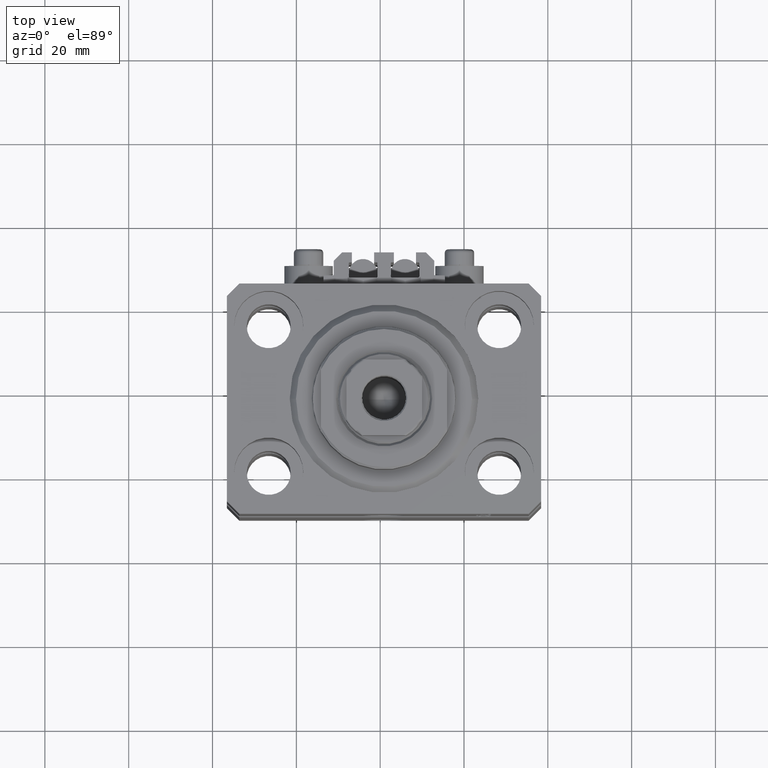
[diagram: clean part render]
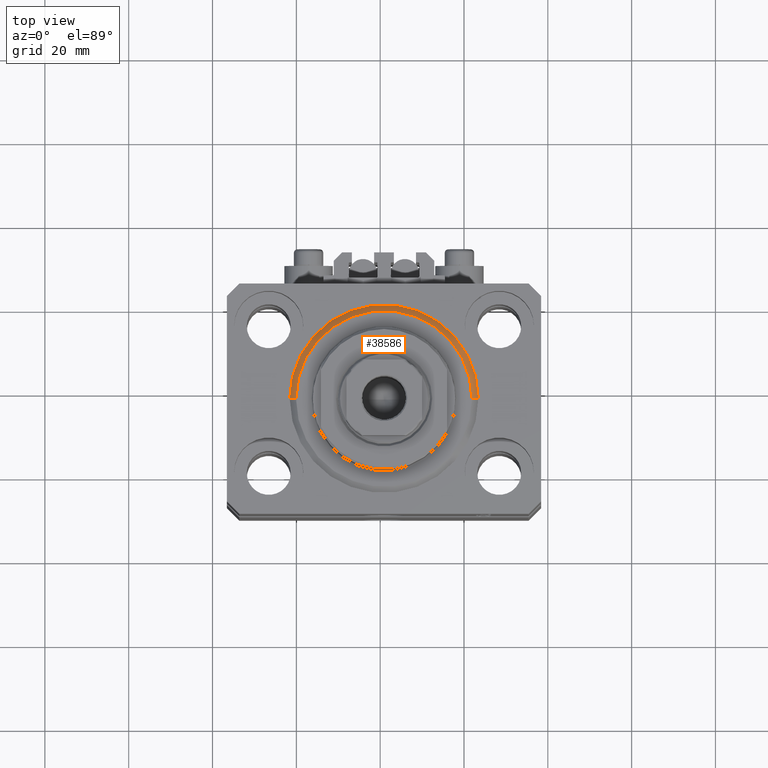
[diagram: same view with one face highlighted and labeled with its STEP entity id]
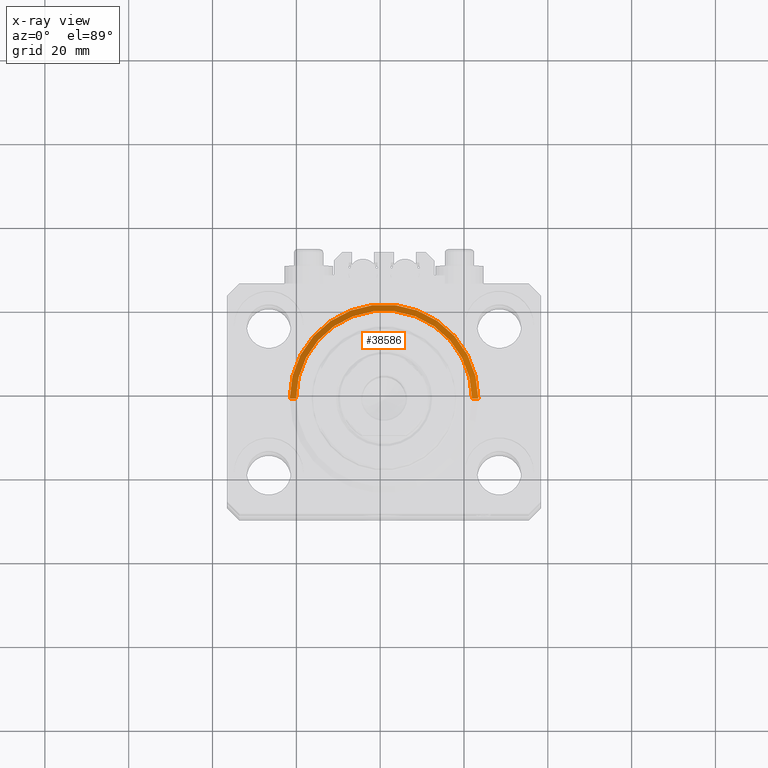
[diagram: x-ray of the same camera — body ghosted, the highlighted face saturated]
A machine part, top view. The second image highlights one B-rep face of the part: STEP entity #38586.
The next image is the same camera in x-ray: the body ghosted, the highlighted face saturated — about 0% of this face is hidden behind the body in this view.
In plain terms, the highlighted conical surface has half-angle 45 deg.
Its self-contained STEP definition (entity closure, byte-faithful):
#1120 = LINE ( 'NONE', #30343, #24587 ) ;
#1324 = LINE ( 'NONE', #20098, #39186 ) ;
#3325 = DIRECTION ( 'NONE',  ( -0.000000000000000000, -0.000000000000000000, 1.000000000000000000 ) ) ;
#3831 = AXIS2_PLACEMENT_3D ( 'NONE', #11537, #19094, #33933 ) ;
#4615 = CIRCLE ( 'NONE', #3831, 20.99999999999998934 ) ;
#7468 = DIRECTION ( 'NONE',  ( 1.000000000000000000, 0.000000000000000000, 0.000000000000000000 ) ) ;
#11454 = CONICAL_SURFACE ( 'NONE', #27026, 22.50000000000000355, 0.7853981633974517207 ) ;
#11537 = CARTESIAN_POINT ( 'NONE',  ( 0.000000000000000000, 0.000000000000000000, 0.000000000000000000 ) ) ;
#11678 = ORIENTED_EDGE ( 'NONE', *, *, #28324, .F. ) ;
#15212 = VERTEX_POINT ( 'NONE', #42673 ) ;
#17347 = CARTESIAN_POINT ( 'NONE',  ( 20.99999999999998934, 0.000000000000000000, 0.000000000000000000 ) ) ;
#18785 = EDGE_CURVE ( 'NONE', #24443, #43987, #4615, .T. ) ;
#19094 = DIRECTION ( 'NONE',  ( -0.000000000000000000, -0.000000000000000000, -1.000000000000000000 ) ) ;
#19171 = CARTESIAN_POINT ( 'NONE',  ( 0.000000000000000000, 0.000000000000000000, 1.500000000000001332 ) ) ;
#19657 = DIRECTION ( 'NONE',  ( -0.7071067811865500152, 8.659560562354963673E-17, 0.7071067811865451302 ) ) ;
#20098 = CARTESIAN_POINT ( 'NONE',  ( 22.50000000000000355, 0.000000000000000000, 1.500000000000001332 ) ) ;
#23567 = CARTESIAN_POINT ( 'NONE',  ( -20.99999999999998934, 2.663606788145492628E-15, 0.000000000000000000 ) ) ;
#23745 = ORIENTED_EDGE ( 'NONE', *, *, #18785, .F. ) ;
#24221 = CARTESIAN_POINT ( 'NONE',  ( -22.50000000000000355, 0.000000000000000000, 1.500000000000001332 ) ) ;
#24443 = VERTEX_POINT ( 'NONE', #23567 ) ;
#24587 = VECTOR ( 'NONE', #19657, 1000.000000000000114 ) ;
#26297 = ORIENTED_EDGE ( 'NONE', *, *, #47305, .T. ) ;
#27026 = AXIS2_PLACEMENT_3D ( 'NONE', #47215, #3325, #43784 ) ;
#28324 = EDGE_CURVE ( 'NONE', #43987, #15212, #1324, .T. ) ;
#29158 = DIRECTION ( 'NONE',  ( -0.000000000000000000, -0.000000000000000000, 1.000000000000000000 ) ) ;
#30343 = CARTESIAN_POINT ( 'NONE',  ( -22.50000000000000355, 2.755455298081545172E-15, 1.500000000000001332 ) ) ;
#33933 = DIRECTION ( 'NONE',  ( 1.000000000000000000, 0.000000000000000000, 0.000000000000000000 ) ) ;
#34994 = EDGE_CURVE ( 'NONE', #15212, #46790, #39316, .T. ) ;
#35757 = FACE_OUTER_BOUND ( 'NONE', #41381, .T. ) ;
#37557 = ORIENTED_EDGE ( 'NONE', *, *, #34994, .F. ) ;
#38586 = ADVANCED_FACE ( 'NONE', ( #35757 ), #11454, .T. ) ;
#39186 = VECTOR ( 'NONE', #42009, 1000.000000000000114 ) ;
#39316 = CIRCLE ( 'NONE', #47885, 22.50000000000000355 ) ;
#41381 = EDGE_LOOP ( 'NONE', ( #23745, #26297, #37557, #11678 ) ) ;
#42009 = DIRECTION ( 'NONE',  ( 0.7071067811865500152, 0.000000000000000000, 0.7071067811865451302 ) ) ;
#42673 = CARTESIAN_POINT ( 'NONE',  ( 22.50000000000000355, 2.755455298081545172E-15, 1.500000000000001332 ) ) ;
#43784 = DIRECTION ( 'NONE',  ( 1.000000000000000000, 0.000000000000000000, 0.000000000000000000 ) ) ;
#43987 = VERTEX_POINT ( 'NONE', #17347 ) ;
#46790 = VERTEX_POINT ( 'NONE', #24221 ) ;
#47215 = CARTESIAN_POINT ( 'NONE',  ( 0.000000000000000000, 0.000000000000000000, 1.500000000000001332 ) ) ;
#47305 = EDGE_CURVE ( 'NONE', #24443, #46790, #1120, .T. ) ;
#47885 = AXIS2_PLACEMENT_3D ( 'NONE', #19171, #29158, #7468 ) ;